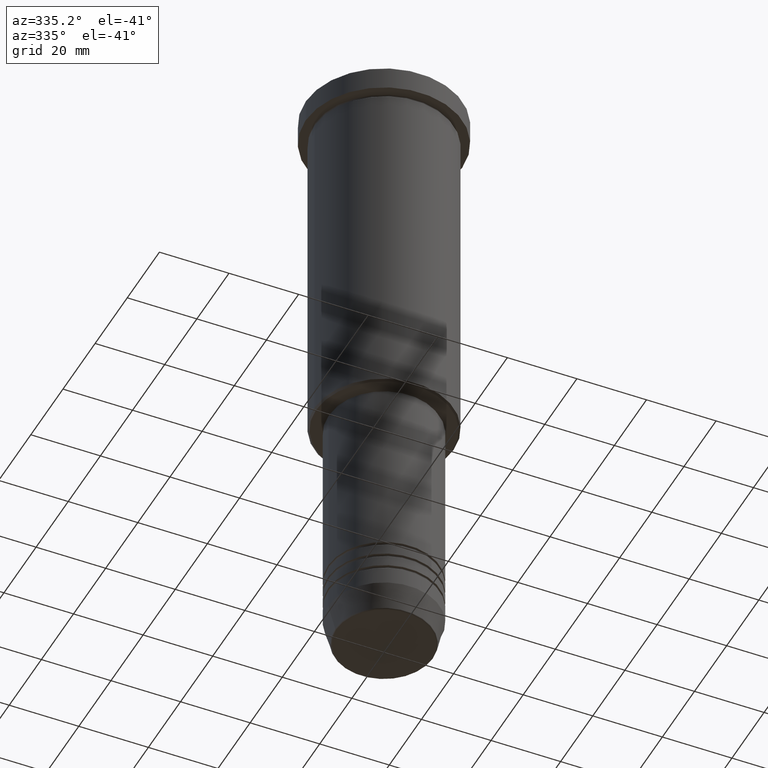
[diagram: clean part render]
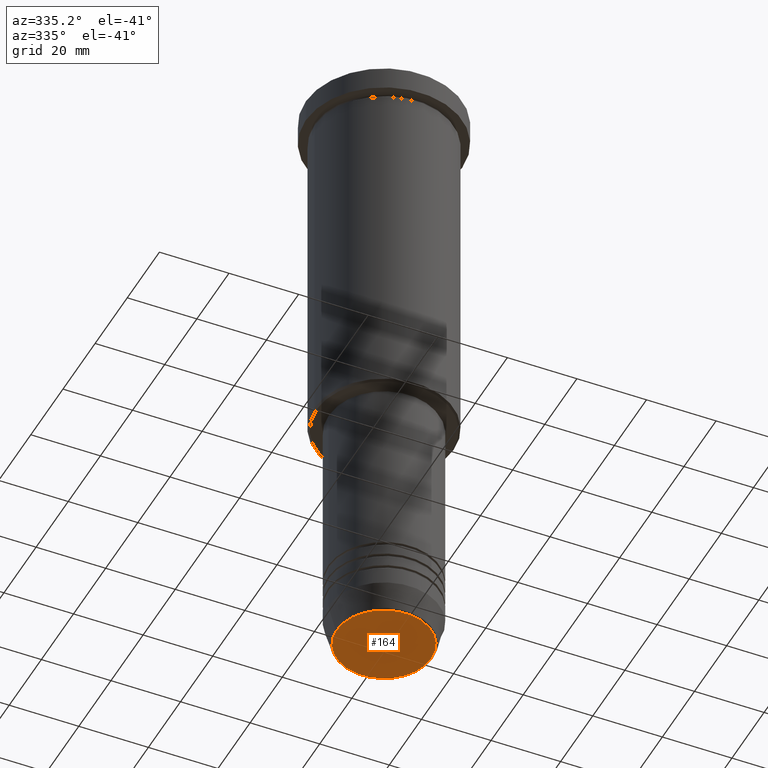
[diagram: same view with one face highlighted and labeled with its STEP entity id]
A machine part, auxiliary view. The second image highlights one B-rep face of the part: STEP entity #164.
In plain terms, the highlighted planar face has unit normal (0, -0, 1).
Its self-contained STEP definition (entity closure, byte-faithful):
#6 = PLANE ( 'NONE',  #192 ) ;
#33 = AXIS2_PLACEMENT_3D ( 'NONE', #1156, #162, #527 ) ;
#36 = VERTEX_POINT ( 'NONE', #194 ) ;
#107 = VERTEX_POINT ( 'NONE', #283 ) ;
#151 = EDGE_LOOP ( 'NONE', ( #678, #242 ) ) ;
#162 = DIRECTION ( 'NONE',  ( 0.000000000000000000, 0.000000000000000000, -1.000000000000000000 ) ) ;
#164 = ADVANCED_FACE ( 'NONE', ( #811 ), #6, .F. ) ;
#168 = CARTESIAN_POINT ( 'NONE',  ( 0.000000000000000000, 0.000000000000000000, -180.0000000000000000 ) ) ;
#172 = AXIS2_PLACEMENT_3D ( 'NONE', #1105, #582, #285 ) ;
#192 = AXIS2_PLACEMENT_3D ( 'NONE', #168, #534, #913 ) ;
#194 = CARTESIAN_POINT ( 'NONE',  ( -13.60671756277710109, 1.695915260300172047E-15, -180.0000000000000000 ) ) ;
#242 = ORIENTED_EDGE ( 'NONE', *, *, #858, .T. ) ;
#269 = CIRCLE ( 'NONE', #172, 13.60671756277710109 ) ;
#283 = CARTESIAN_POINT ( 'NONE',  ( 13.60671756277710109, 0.000000000000000000, -180.0000000000000000 ) ) ;
#285 = DIRECTION ( 'NONE',  ( 1.000000000000000000, 0.000000000000000000, 0.000000000000000000 ) ) ;
#527 = DIRECTION ( 'NONE',  ( 1.000000000000000000, 0.000000000000000000, 0.000000000000000000 ) ) ;
#534 = DIRECTION ( 'NONE',  ( 0.000000000000000000, -0.000000000000000000, 1.000000000000000000 ) ) ;
#582 = DIRECTION ( 'NONE',  ( 0.000000000000000000, 0.000000000000000000, -1.000000000000000000 ) ) ;
#595 = EDGE_CURVE ( 'NONE', #107, #36, #269, .T. ) ;
#678 = ORIENTED_EDGE ( 'NONE', *, *, #595, .T. ) ;
#811 = FACE_OUTER_BOUND ( 'NONE', #151, .T. ) ;
#858 = EDGE_CURVE ( 'NONE', #36, #107, #886, .T. ) ;
#886 = CIRCLE ( 'NONE', #33, 13.60671756277710109 ) ;
#913 = DIRECTION ( 'NONE',  ( 1.000000000000000000, 0.000000000000000000, 0.000000000000000000 ) ) ;
#1105 = CARTESIAN_POINT ( 'NONE',  ( 0.000000000000000000, 0.000000000000000000, -180.0000000000000000 ) ) ;
#1156 = CARTESIAN_POINT ( 'NONE',  ( 0.000000000000000000, 0.000000000000000000, -180.0000000000000000 ) ) ;